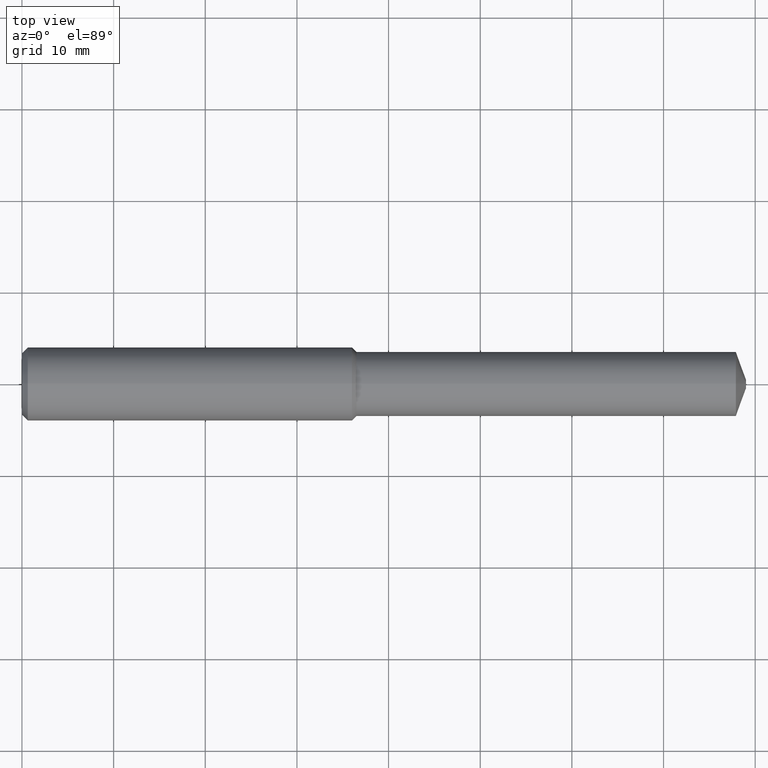
[diagram: clean part render]
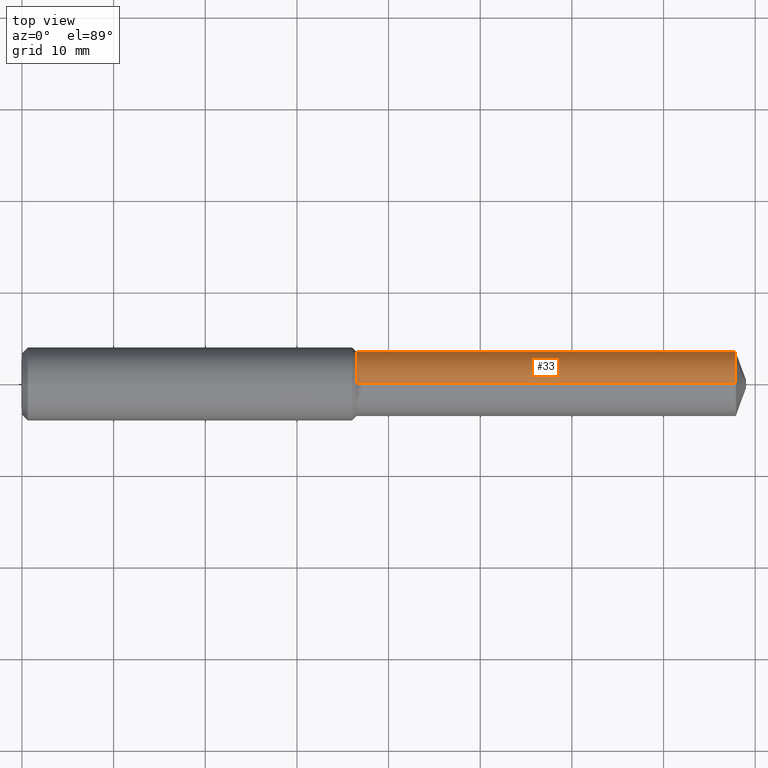
[diagram: same view with one face highlighted and labeled with its STEP entity id]
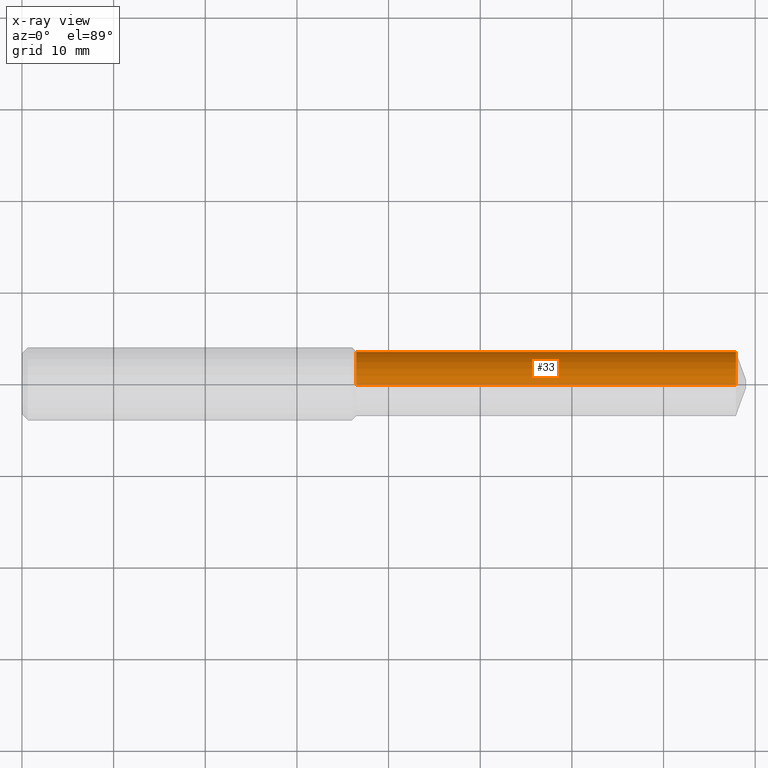
[diagram: x-ray of the same camera — body ghosted, the highlighted face saturated]
A machine part, top view. The second image highlights one B-rep face of the part: STEP entity #33.
The next image is the same camera in x-ray: the body ghosted, the highlighted face saturated — about 0% of this face is hidden behind the body in this view.
In plain terms, the highlighted cylindrical surface (edge-blend (fillet) strip) has radius 3.5052 mm, axis along (1, -0, -0).
Its self-contained STEP definition (entity closure, byte-faithful):
#1 = LINE ( 'NONE', #347, #46 ) ;
#23 = DIRECTION ( 'NONE',  ( 0.000000000000000000, 0.000000000000000000, -1.000000000000000000 ) ) ;
#31 = CIRCLE ( 'NONE', #38, 0.1380000000000001781 ) ;
#33 = ADVANCED_FACE ( 'NONE', ( #222 ), #284, .T. ) ;
#37 = ORIENTED_EDGE ( 'NONE', *, *, #70, .T. ) ;
#38 = AXIS2_PLACEMENT_3D ( 'NONE', #80, #133, #192 ) ;
#40 = ORIENTED_EDGE ( 'NONE', *, *, #316, .F. ) ;
#46 = VECTOR ( 'NONE', #317, 39.37007874015748143 ) ;
#47 = CARTESIAN_POINT ( 'NONE',  ( 1.436803149606299179, 1.690012582823350463E-17, 0.1380000000000001781 ) ) ;
#49 = DIRECTION ( 'NONE',  ( 1.000000000000000000, -0.000000000000000000, -0.000000000000000000 ) ) ;
#70 = EDGE_CURVE ( 'NONE', #243, #122, #31, .T. ) ;
#80 = CARTESIAN_POINT ( 'NONE',  ( 1.436803149606299179, 0.000000000000000000, 0.000000000000000000 ) ) ;
#87 = VECTOR ( 'NONE', #172, 39.37007874015748143 ) ;
#91 = ORIENTED_EDGE ( 'NONE', *, *, #356, .T. ) ;
#95 = ORIENTED_EDGE ( 'NONE', *, *, #209, .F. ) ;
#113 = CARTESIAN_POINT ( 'NONE',  ( 3.066377807243363840, 1.690012582823352312E-17, -0.1380000000000004001 ) ) ;
#122 = VERTEX_POINT ( 'NONE', #47 ) ;
#133 = DIRECTION ( 'NONE',  ( 1.000000000000000000, -0.000000000000000000, -0.000000000000000000 ) ) ;
#142 = DIRECTION ( 'NONE',  ( 0.000000000000000000, 0.000000000000000000, -1.000000000000000000 ) ) ;
#172 = DIRECTION ( 'NONE',  ( 1.000000000000000000, -0.000000000000000000, -0.000000000000000000 ) ) ;
#192 = DIRECTION ( 'NONE',  ( 0.000000000000000000, 0.000000000000000000, -1.000000000000000000 ) ) ;
#197 = CARTESIAN_POINT ( 'NONE',  ( 3.066377807243363840, 0.000000000000000000, 0.1380000000000004001 ) ) ;
#202 = DIRECTION ( 'NONE',  ( 1.000000000000000000, -0.000000000000000000, -0.000000000000000000 ) ) ;
#209 = EDGE_CURVE ( 'NONE', #319, #360, #220, .T. ) ;
#220 = CIRCLE ( 'NONE', #301, 0.1380000000000003724 ) ;
#222 = FACE_OUTER_BOUND ( 'NONE', #302, .T. ) ;
#232 = CARTESIAN_POINT ( 'NONE',  ( 3.066377807243363840, 0.000000000000000000, 0.000000000000000000 ) ) ;
#237 = CARTESIAN_POINT ( 'NONE',  ( -0.03808593750000075634, 1.690012582823350771E-17, 0.1380000000000002891 ) ) ;
#239 = AXIS2_PLACEMENT_3D ( 'NONE', #337, #49, #23 ) ;
#243 = VERTEX_POINT ( 'NONE', #287 ) ;
#284 = CYLINDRICAL_SURFACE ( 'NONE', #239, 0.1380000000000002891 ) ;
#287 = CARTESIAN_POINT ( 'NONE',  ( 1.436803149606299179, 0.000000000000000000, -0.1380000000000001781 ) ) ;
#301 = AXIS2_PLACEMENT_3D ( 'NONE', #232, #202, #142 ) ;
#302 = EDGE_LOOP ( 'NONE', ( #37, #91, #95, #40 ) ) ;
#316 = EDGE_CURVE ( 'NONE', #243, #319, #1, .T. ) ;
#317 = DIRECTION ( 'NONE',  ( 1.000000000000000000, -0.000000000000000000, -0.000000000000000000 ) ) ;
#319 = VERTEX_POINT ( 'NONE', #113 ) ;
#337 = CARTESIAN_POINT ( 'NONE',  ( -0.03808593750000075634, 0.000000000000000000, 0.000000000000000000 ) ) ;
#347 = CARTESIAN_POINT ( 'NONE',  ( -0.03808593750000075634, 0.000000000000000000, -0.1380000000000002891 ) ) ;
#349 = LINE ( 'NONE', #237, #87 ) ;
#356 = EDGE_CURVE ( 'NONE', #122, #360, #349, .T. ) ;
#360 = VERTEX_POINT ( 'NONE', #197 ) ;